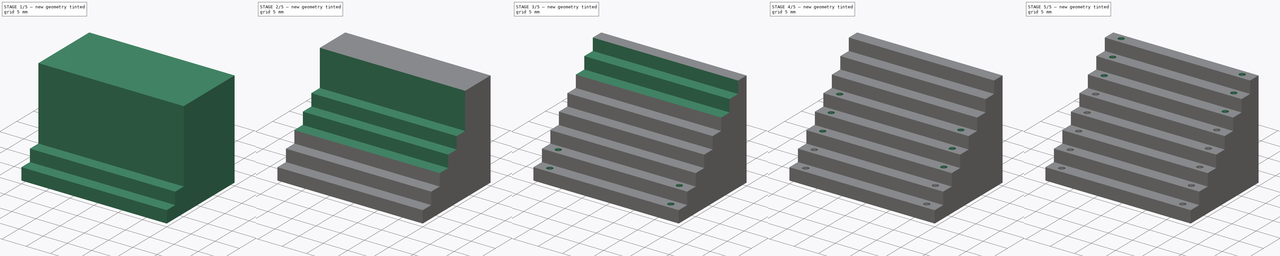
[diagram: build sequence overview — one tinted view per stage of 5, left to right]
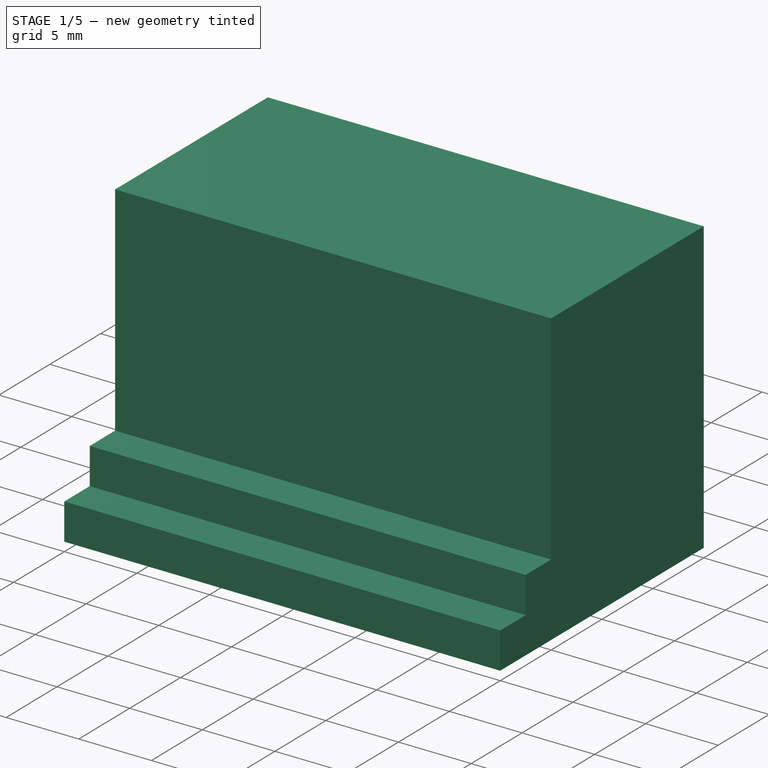
[diagram: stage 1 of 5 — iso view after this stage's code; geometry added in this stage tinted green]
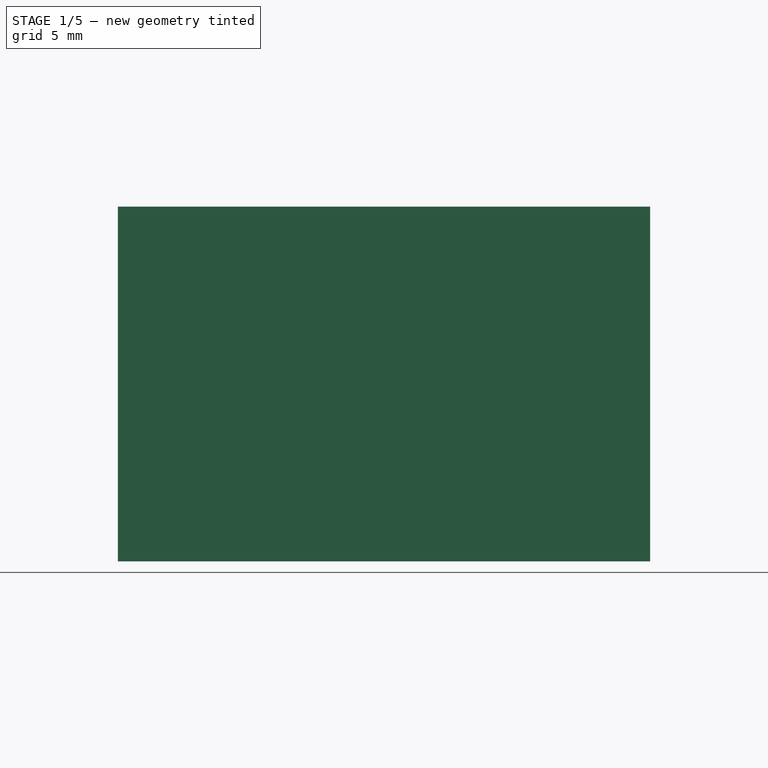
[diagram: stage 1 of 5 — front view after this stage's code; geometry added in this stage tinted green]
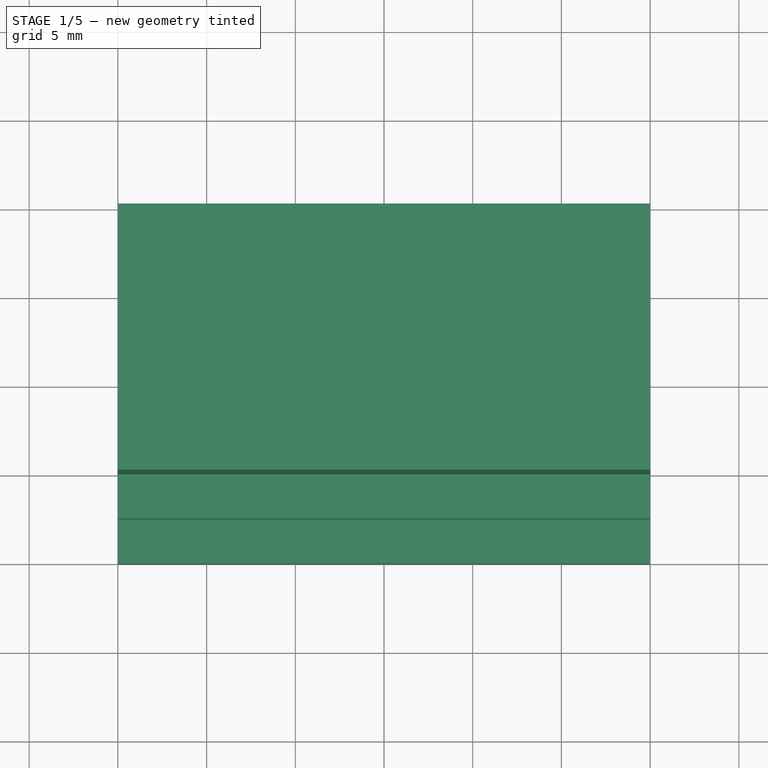
[diagram: stage 1 of 5 — top view after this stage's code; geometry added in this stage tinted green]
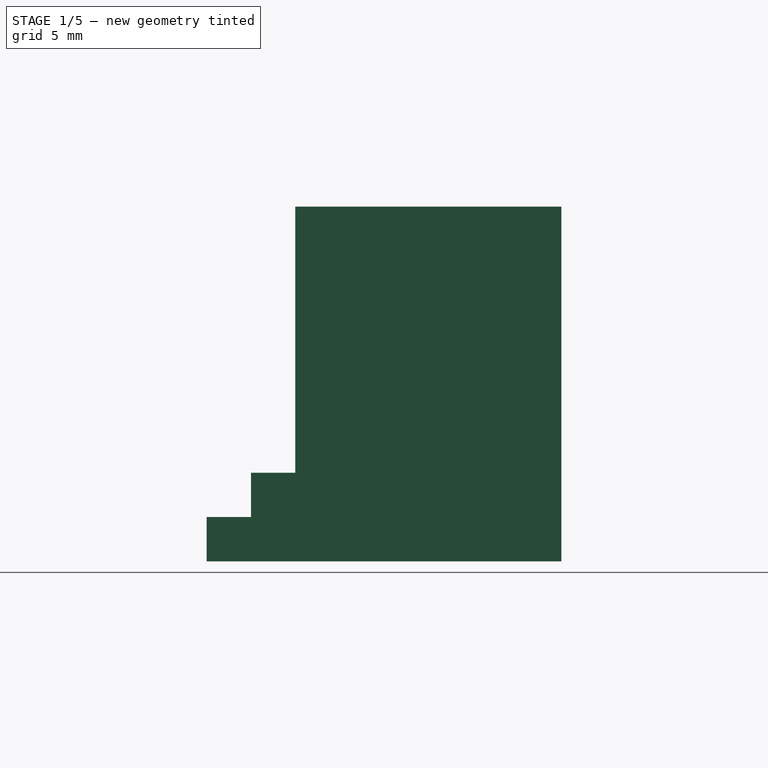
[diagram: stage 1 of 5 — right view after this stage's code; geometry added in this stage tinted green]
FCSTD DOCUMENT  (FreeCAD 0.15R4671 (Git))
Label: treppe
License: All rights reserved
LicenseURL: http://en.wikipedia.org/wiki/All_rights_reserved
objects: Sketcher::SketchObject×16, PartDesign::Pocket×15, PartDesign::Pad×1
note: 48 computed .brp shape members not serialized (recipe doc carries the construction recipe); baked Part::Feature solids carry a one-line shape summary decoded from their .brp

FEATURE [Sketcher::SketchObject] Sketch
  sketch-geometry (4):
    g0: LineSegment StartX=-15 StartY=10 StartZ=0 EndX=15 EndY=10 EndZ=0
    g1: LineSegment StartX=15 StartY=10 StartZ=0 EndX=15 EndY=-10 EndZ=0
    g2: LineSegment StartX=15 StartY=-10 StartZ=0 EndX=-15 EndY=-10 EndZ=0
    g3: LineSegment StartX=-15 StartY=-10 StartZ=0 EndX=-15 EndY=10 EndZ=0
  constraints (12):
    c: Coincident(g0,g1)
    c: Coincident(g1,g2)
    c: Coincident(g2,g3)
    c: Coincident(g3,g0)
    c: Horizontal(g0)
    c: Horizontal(g2)
    c: Vertical(g1)
    c: Vertical(g3)
    c: Symmetric(g2,g0,g-1)
    c: Symmetric(g0,g0,g-2)
    c: DistanceX(g0) = 30
    c: DistanceY(g1) = -20
FEATURE [PartDesign::Pad] Pad
  Length = 20
  Length2 = 100
  Midplane = true
  Sketch = -> Sketch
  Type = 0
FEATURE [Sketcher::SketchObject] Sketch001
  Placement = pos=(0,0,10) rot=(0,0,1;0rad)
  Support = -> Pad [Face6]
  sketch-geometry (4):
    g0: LineSegment StartX=-15 StartY=-7.5 StartZ=0 EndX=15 EndY=-7.5 EndZ=0
    g1: LineSegment StartX=15 StartY=-7.5 StartZ=0 EndX=15 EndY=-10 EndZ=0
    g2: LineSegment StartX=15 StartY=-10 StartZ=0 EndX=-15 EndY=-10 EndZ=0
    g3: LineSegment StartX=-15 StartY=-10 StartZ=0 EndX=-15 EndY=-7.5 EndZ=0
  constraints (12):
    c: Coincident(g0,g1)
    c: Coincident(g1,g2)
    c: Coincident(g2,g3)
    c: Coincident(g3,g0)
    c: Horizontal(g0)
    c: Horizontal(g2)
    c: Vertical(g1)
    c: Vertical(g3)
    c: DistanceX(g0) = 30
    c: DistanceY(g1) = -2.5
    c: Symmetric(g0,g0,g-2)
    c: DistanceY(g-1,g0) = -7.5
FEATURE [PartDesign::Pocket] Pocket
  Length = 17.5
  Sketch = -> Sketch001
  Type = 0
FEATURE [Sketcher::SketchObject] Sketch002
  Placement = pos=(0,0,10) rot=(0,0,1;0rad)
  Support = -> Pocket [Face5]
  sketch-geometry (4):
    g0: LineSegment StartX=-15 StartY=-5 StartZ=0 EndX=15 EndY=-5 EndZ=0
    g1: LineSegment StartX=15 StartY=-5 StartZ=0 EndX=15 EndY=-7.5 EndZ=0
    g2: LineSegment StartX=15 StartY=-7.5 StartZ=0 EndX=-15 EndY=-7.5 EndZ=0
    g3: LineSegment StartX=-15 StartY=-7.5 StartZ=0 EndX=-15 EndY=-5 EndZ=0
  constraints (12):
    c: Coincident(g0,g1)
    c: Coincident(g1,g2)
    c: Coincident(g2,g3)
    c: Coincident(g3,g0)
    c: Horizontal(g0)
    c: Horizontal(g2)
    c: Vertical(g1)
    c: Vertical(g3)
    c: Symmetric(g0,g0,g-2)
    c: DistanceX(g0) = 30
    c: DistanceY(g3) = 2.5
    c: DistanceY(g-1,g0) = -5
FEATURE [PartDesign::Pocket] Pocket001
  Length = 15
  Sketch = -> Sketch002
  Type = 0
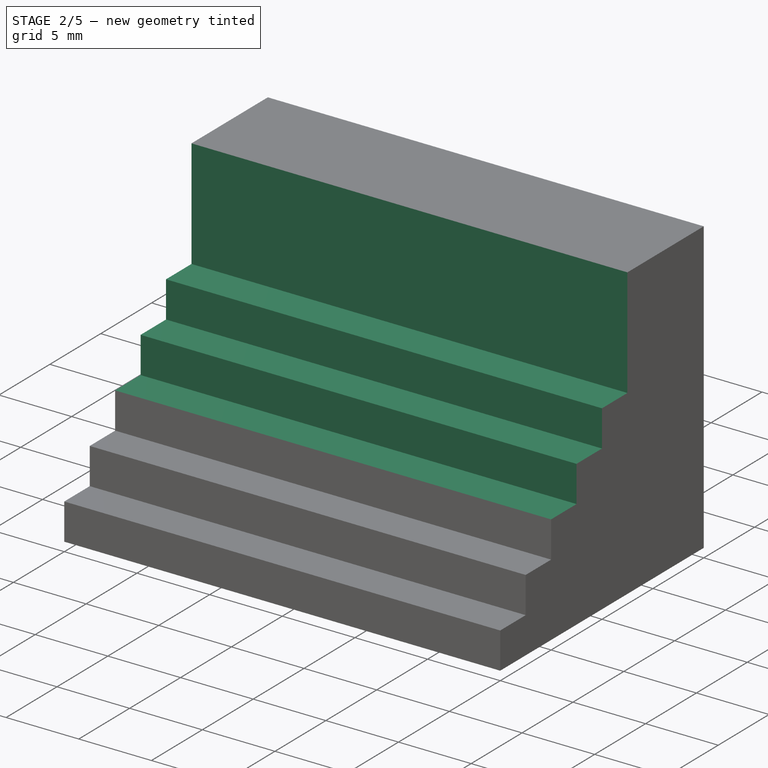
[diagram: stage 2 of 5 — iso view after this stage's code; geometry added in this stage tinted green]
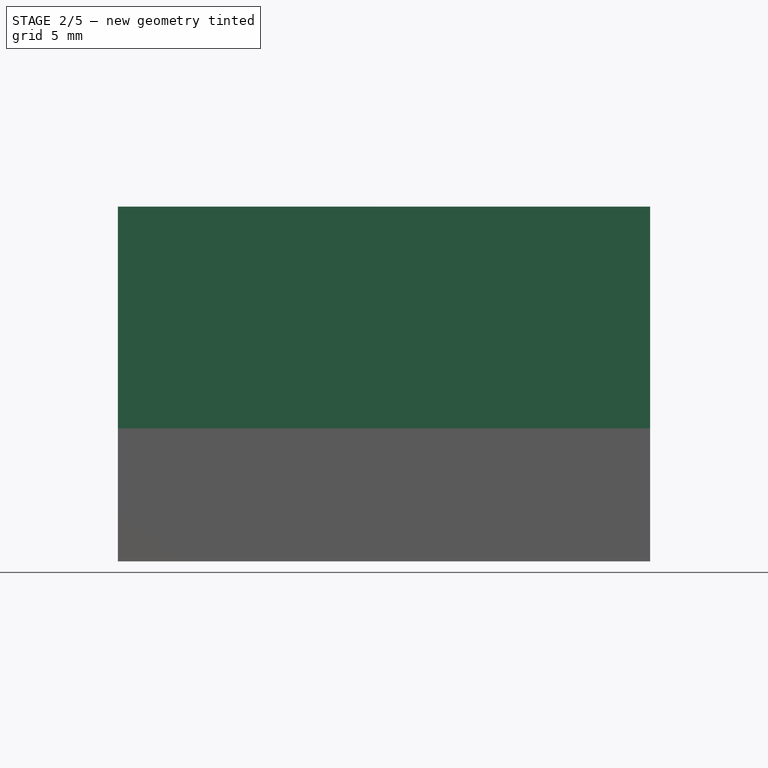
[diagram: stage 2 of 5 — front view after this stage's code; geometry added in this stage tinted green]
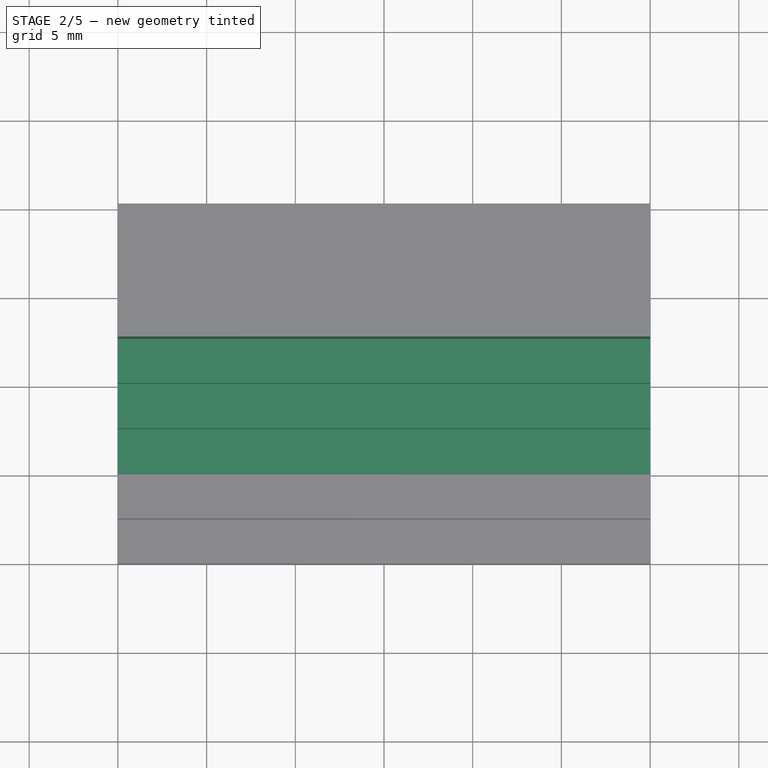
[diagram: stage 2 of 5 — top view after this stage's code; geometry added in this stage tinted green]
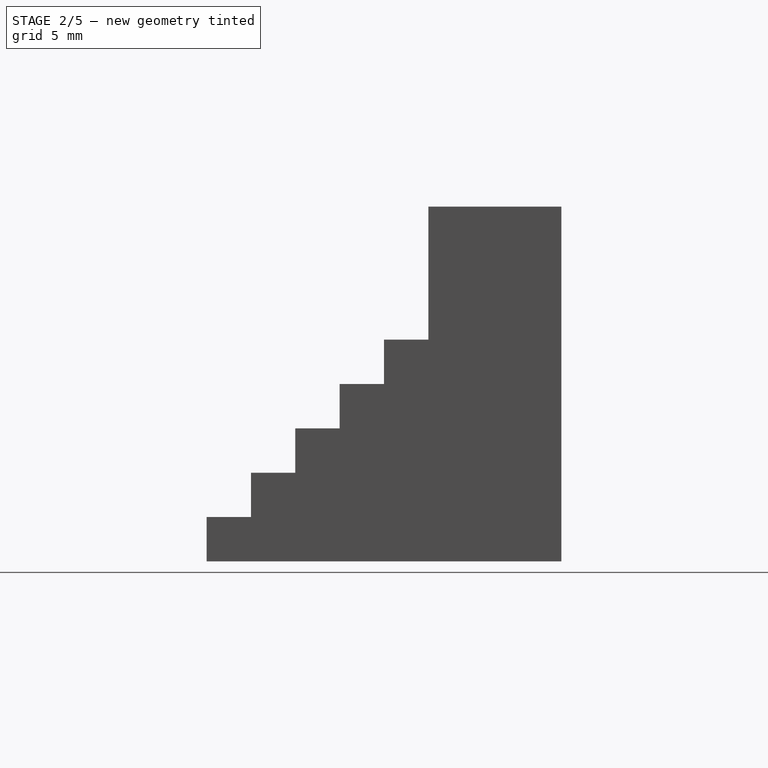
[diagram: stage 2 of 5 — right view after this stage's code; geometry added in this stage tinted green]
FEATURE [Sketcher::SketchObject] Sketch003
  Placement = pos=(0,0,10) rot=(0,0,1;0rad)
  Support = -> Pocket001 [Face5]
  sketch-geometry (4):
    g0: LineSegment StartX=-15 StartY=-2.5 StartZ=0 EndX=15 EndY=-2.5 EndZ=0
    g1: LineSegment StartX=15 StartY=-2.5 StartZ=0 EndX=15 EndY=-5 EndZ=0
    g2: LineSegment StartX=15 StartY=-5 StartZ=0 EndX=-15 EndY=-5 EndZ=0
    g3: LineSegment StartX=-15 StartY=-5 StartZ=0 EndX=-15 EndY=-2.5 EndZ=0
  constraints (12):
    c: Coincident(g0,g1)
    c: Coincident(g1,g2)
    c: Coincident(g2,g3)
    c: Coincident(g3,g0)
    c: Horizontal(g0)
    c: Horizontal(g2)
    c: Vertical(g1)
    c: Vertical(g3)
    c: Symmetric(g0,g0,g-2)
    c: DistanceX(g0) = 30
    c: DistanceY(g1) = -2.5
    c: DistanceY(g-1,g0) = -2.5
FEATURE [PartDesign::Pocket] Pocket002
  Length = 12.5
  Sketch = -> Sketch003
  Type = 0
FEATURE [Sketcher::SketchObject] Sketch004
  Placement = pos=(0,0,10) rot=(0,0,1;0rad)
  Support = -> Pocket002 [Face5]
  sketch-geometry (4):
    g0: LineSegment StartX=-15 StartY=0 StartZ=0 EndX=15 EndY=0 EndZ=0
    g1: LineSegment StartX=15 StartY=0 StartZ=0 EndX=15 EndY=-2.5 EndZ=0
    g2: LineSegment StartX=15 StartY=-2.5 StartZ=0 EndX=-15 EndY=-2.5 EndZ=0
    g3: LineSegment StartX=-15 StartY=-2.5 StartZ=0 EndX=-15 EndY=0 EndZ=0
  constraints (12):
    c: Coincident(g0,g1)
    c: Coincident(g1,g2)
    c: Coincident(g2,g3)
    c: Coincident(g3,g0)
    c: Horizontal(g0)
    c: Horizontal(g2)
    c: Vertical(g1)
    c: Vertical(g3)
    c: Symmetric(g0,g0,g-2)
    c: DistanceX(g0) = 30
    c: DistanceY(g3) = 2.5
    c: DistanceY(g-1,g0) = 0
FEATURE [PartDesign::Pocket] Pocket003
  Length = 10
  Sketch = -> Sketch004
  Type = 0
FEATURE [Sketcher::SketchObject] Sketch005
  Placement = pos=(0,0,10) rot=(0,0,1;0rad)
  Support = -> Pocket003 [Face5]
  sketch-geometry (4):
    g0: LineSegment StartX=-15 StartY=2.5 StartZ=0 EndX=15 EndY=2.5 EndZ=0
    g1: LineSegment StartX=15 StartY=2.5 StartZ=0 EndX=15 EndY=0 EndZ=0
    g2: LineSegment StartX=15 StartY=0 StartZ=0 EndX=-15 EndY=0 EndZ=0
    g3: LineSegment StartX=-15 StartY=0 StartZ=0 EndX=-15 EndY=2.5 EndZ=0
  constraints (12):
    c: Coincident(g0,g1)
    c: Coincident(g1,g2)
    c: Coincident(g2,g3)
    c: Coincident(g3,g0)
    c: Horizontal(g0)
    c: Horizontal(g2)
    c: Vertical(g1)
    c: Vertical(g3)
    c: Symmetric(g0,g0,g-2)
    c: DistanceX(g0) = 30
    c: DistanceY(g1) = -2.5
    c: DistanceY(g-1,g1) = 0
FEATURE [PartDesign::Pocket] Pocket004
  Length = 7.5
  Sketch = -> Sketch005
  Type = 0
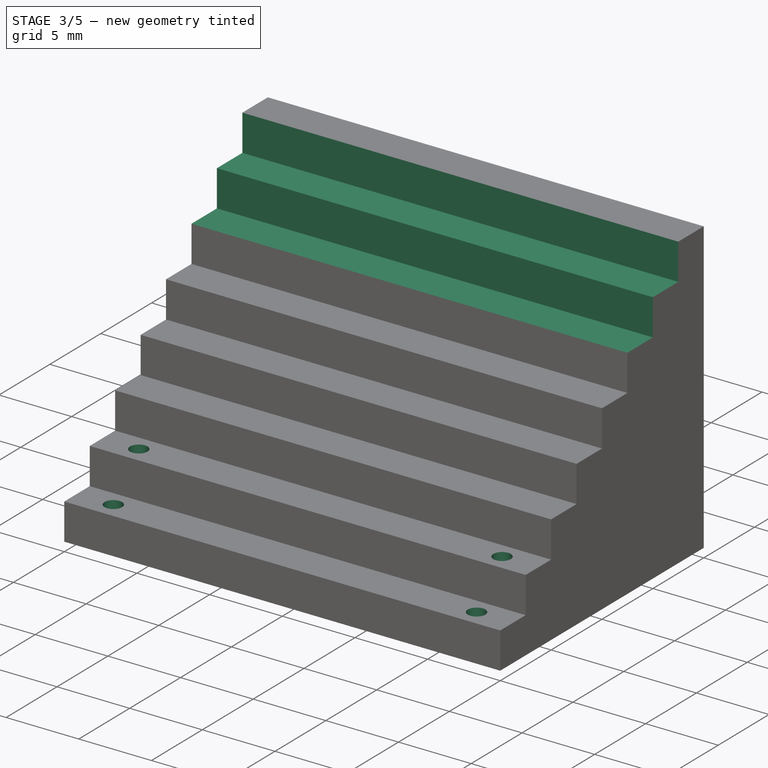
[diagram: stage 3 of 5 — iso view after this stage's code; geometry added in this stage tinted green]
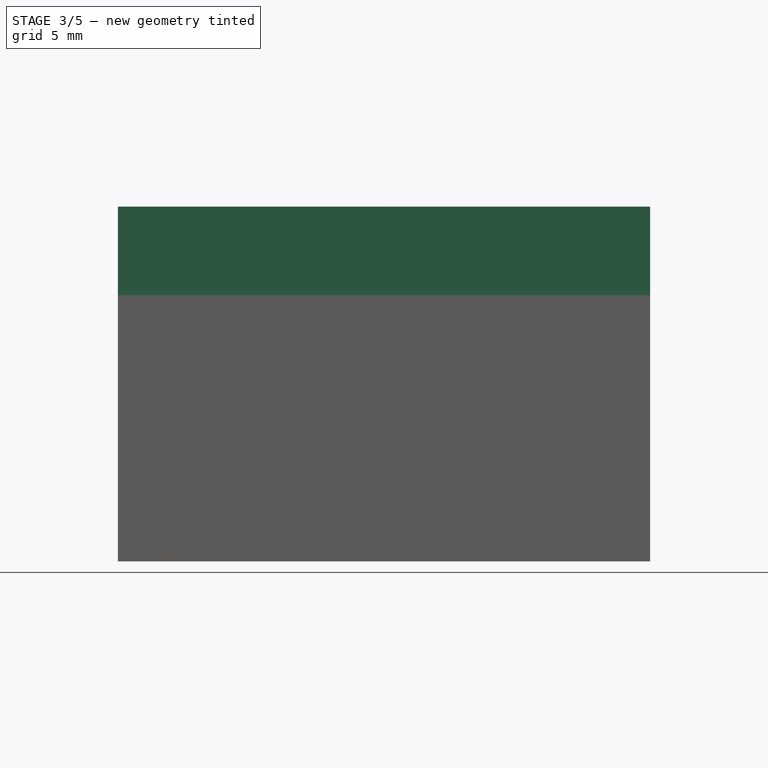
[diagram: stage 3 of 5 — front view after this stage's code; geometry added in this stage tinted green]
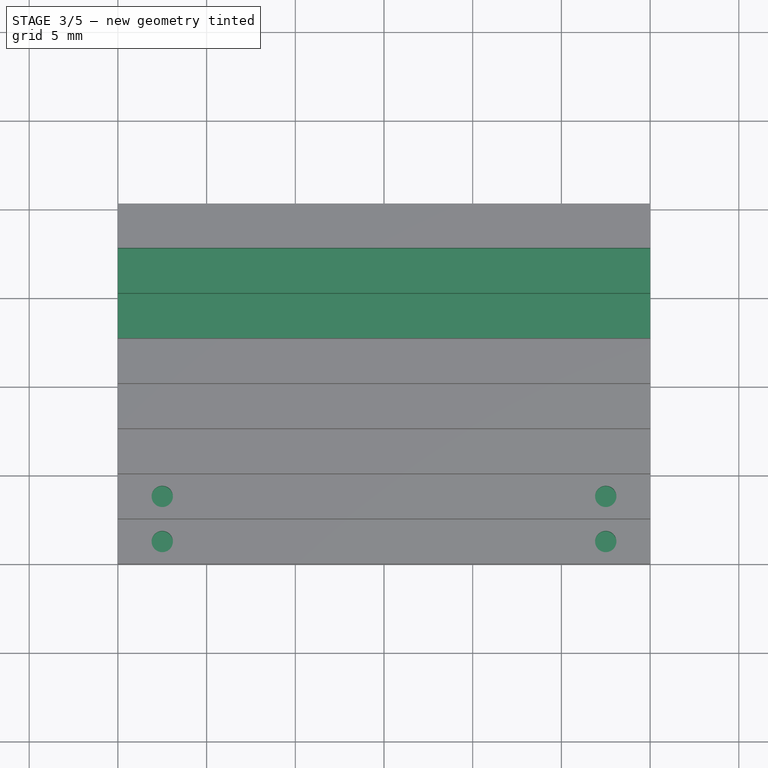
[diagram: stage 3 of 5 — top view after this stage's code; geometry added in this stage tinted green]
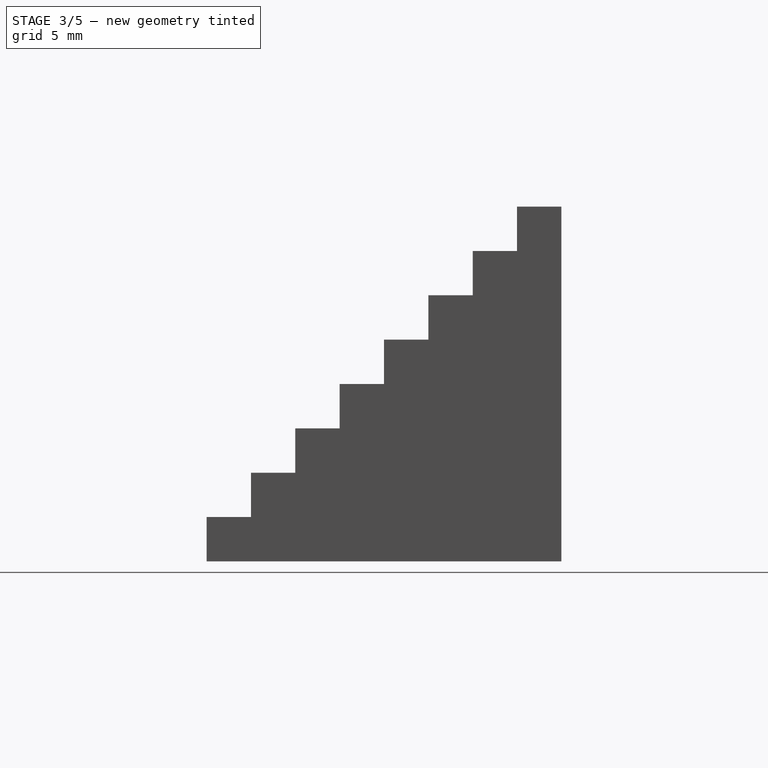
[diagram: stage 3 of 5 — right view after this stage's code; geometry added in this stage tinted green]
FEATURE [Sketcher::SketchObject] Sketch006
  Placement = pos=(0,0,10) rot=(0,0,1;0rad)
  Support = -> Pocket004 [Face5]
  sketch-geometry (4):
    g0: LineSegment StartX=-15 StartY=5 StartZ=0 EndX=15 EndY=5 EndZ=0
    g1: LineSegment StartX=15 StartY=5 StartZ=0 EndX=15 EndY=2.5 EndZ=0
    g2: LineSegment StartX=15 StartY=2.5 StartZ=0 EndX=-15 EndY=2.5 EndZ=0
    g3: LineSegment StartX=-15 StartY=2.5 StartZ=0 EndX=-15 EndY=5 EndZ=0
  constraints (12):
    c: Coincident(g0,g1)
    c: Coincident(g1,g2)
    c: Coincident(g2,g3)
    c: Coincident(g3,g0)
    c: Horizontal(g0)
    c: Horizontal(g2)
    c: Vertical(g1)
    c: Vertical(g3)
    c: Symmetric(g0,g0,g-2)
    c: DistanceX(g0) = 30
    c: DistanceY(g1) = -2.5
    c: DistanceY(g-1,g1) = 2.5
FEATURE [PartDesign::Pocket] Pocket005
  Length = 5
  Sketch = -> Sketch006
  Type = 0
FEATURE [Sketcher::SketchObject] Sketch007
  Placement = pos=(0,0,10) rot=(0,0,1;0rad)
  Support = -> Pocket005 [Face5]
  sketch-geometry (4):
    g0: LineSegment StartX=-15 StartY=7.5 StartZ=0 EndX=15 EndY=7.5 EndZ=0
    g1: LineSegment StartX=15 StartY=7.5 StartZ=0 EndX=15 EndY=5 EndZ=0
    g2: LineSegment StartX=15 StartY=5 StartZ=0 EndX=-15 EndY=5 EndZ=0
    g3: LineSegment StartX=-15 StartY=5 StartZ=0 EndX=-15 EndY=7.5 EndZ=0
  constraints (12):
    c: Coincident(g0,g1)
    c: Coincident(g1,g2)
    c: Coincident(g2,g3)
    c: Coincident(g3,g0)
    c: Horizontal(g0)
    c: Horizontal(g2)
    c: Vertical(g1)
    c: Vertical(g3)
    c: Symmetric(g0,g0,g-2)
    c: DistanceX(g0) = 30
    c: DistanceY(g1) = -2.5
    c: DistanceY(g-1,g1) = 5
FEATURE [PartDesign::Pocket] Pocket006
  Length = 2.5
  Sketch = -> Sketch007
  Type = 0
FEATURE [Sketcher::SketchObject] Sketch008
  Placement = pos=(0,0,-7.5) rot=(0,0,1;0rad)
  Support = -> Pocket006 [Face19]
  sketch-geometry (2):
    g0: Circle CenterX=-12.5 CenterY=-8.75 CenterZ=0 NormalX=0 NormalY=0 NormalZ=1 Radius=0.6
    g1: Circle CenterX=12.5 CenterY=-8.75 CenterZ=0 NormalX=0 NormalY=0 NormalZ=1 Radius=0.6
  constraints (6):
    c: DistanceX(g-1,g0) = -12.5
    c: DistanceY(g-1,g0) = -8.75
    c: Radius(g1) = 0.6
    c: DistanceX(g-1,g1) = 12.5
    c: DistanceY(g-1,g1) = -8.75
    c: Equal(g0,g1)
FEATURE [PartDesign::Pocket] Pocket007
  Length = 1.5
  Sketch = -> Sketch008
  Type = 0
FEATURE [Sketcher::SketchObject] Sketch009
  Placement = pos=(0,0,-5) rot=(0,0,1;0rad)
  Support = -> Pocket007 [Face17]
  sketch-geometry (2):
    g0: Circle CenterX=-12.5 CenterY=-6.25 CenterZ=0 NormalX=0 NormalY=0 NormalZ=1 Radius=0.6
    g1: Circle CenterX=12.5 CenterY=-6.25 CenterZ=0 NormalX=0 NormalY=0 NormalZ=1 Radius=0.6
  constraints (5):
    c: Symmetric(g0,g1,g-2)
    c: Radius(g0) = 0.6
    c: DistanceY(g-1,g0) = -6.25
    c: DistanceX(g0,g1) = 25
    c: Equal(g0,g1)
FEATURE [PartDesign::Pocket] Pocket008
  Length = 1.5
  Sketch = -> Sketch009
  Type = 0
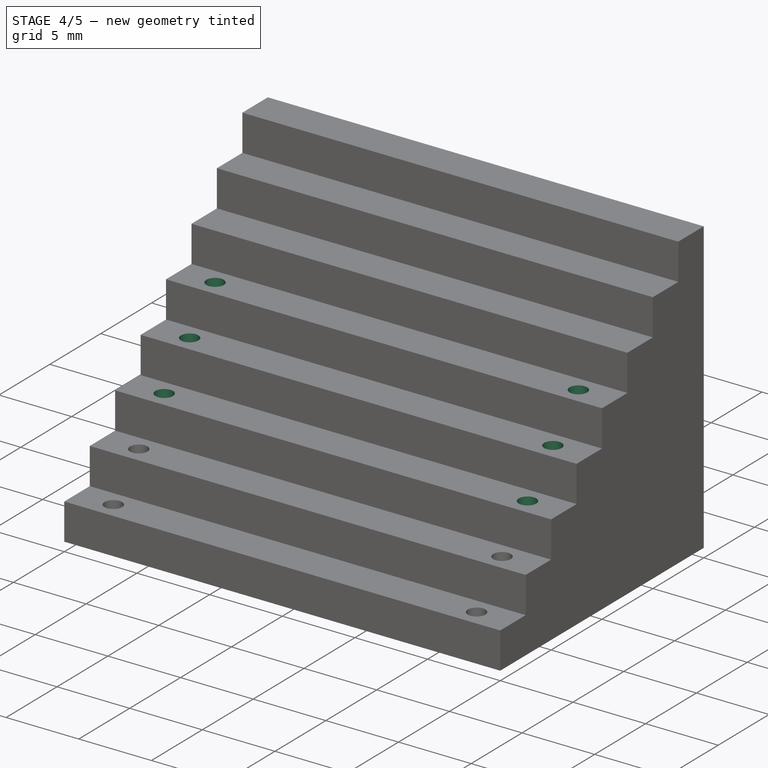
[diagram: stage 4 of 5 — iso view after this stage's code; geometry added in this stage tinted green]
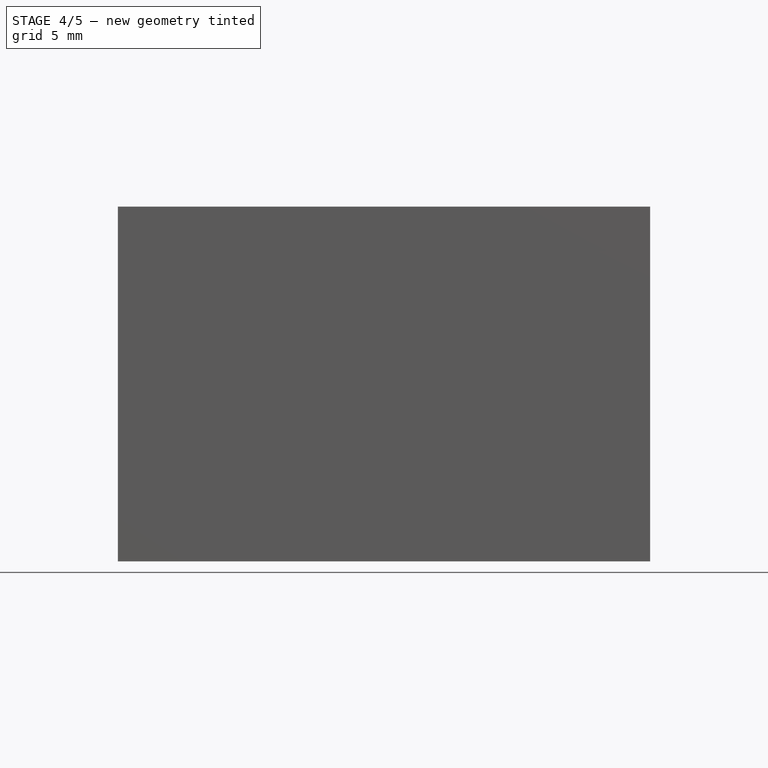
[diagram: stage 4 of 5 — front view after this stage's code; geometry added in this stage tinted green]
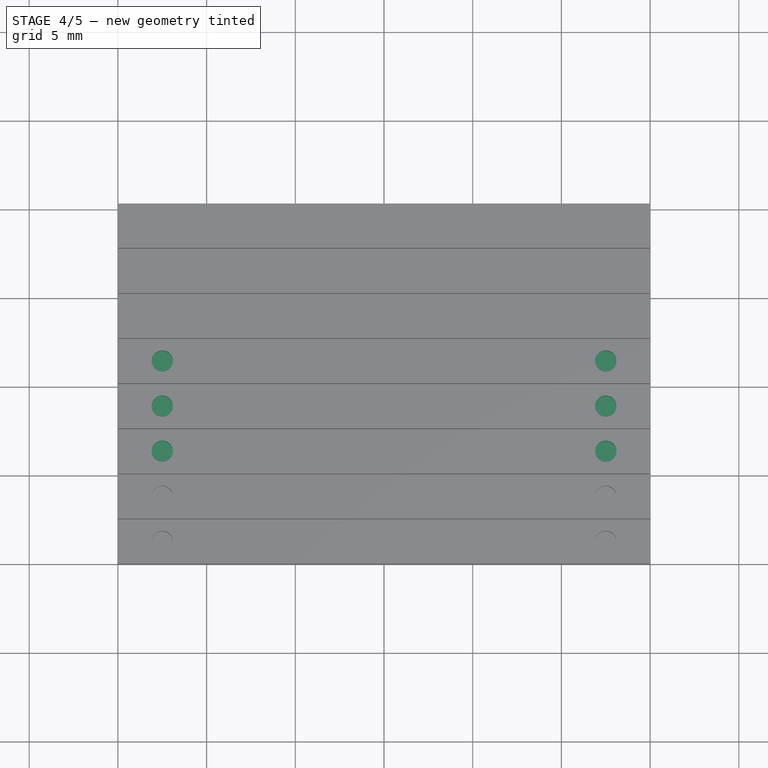
[diagram: stage 4 of 5 — top view after this stage's code; geometry added in this stage tinted green]
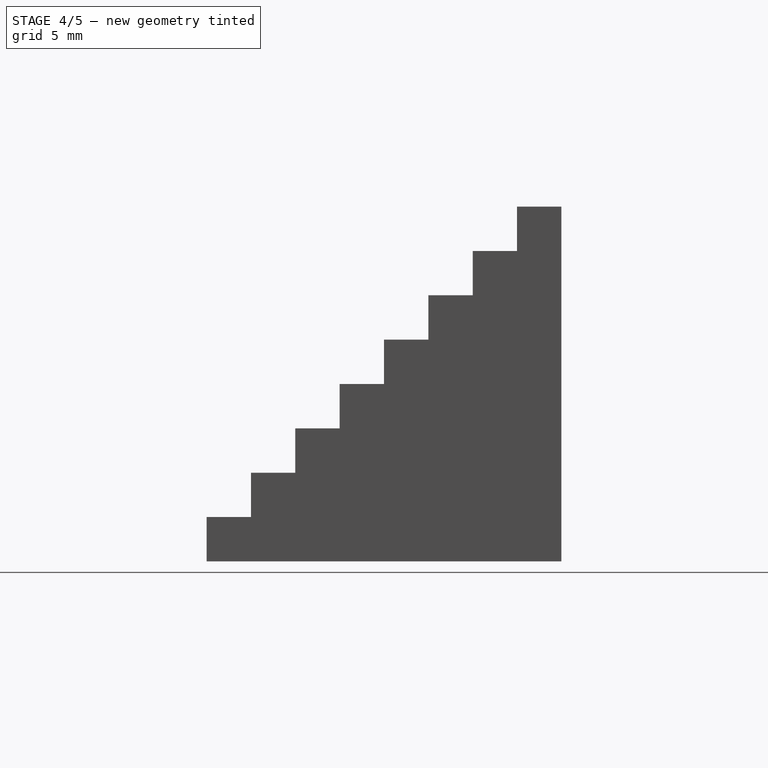
[diagram: stage 4 of 5 — right view after this stage's code; geometry added in this stage tinted green]
FEATURE [Sketcher::SketchObject] Sketch010
  Placement = pos=(0,0,-2.5) rot=(0,0,1;0rad)
  Support = -> Pocket008 [Face15]
  sketch-geometry (2):
    g0: Circle CenterX=-12.5 CenterY=-3.75 CenterZ=0 NormalX=0 NormalY=0 NormalZ=1 Radius=0.6
    g1: Circle CenterX=12.5 CenterY=-3.75 CenterZ=0 NormalX=0 NormalY=0 NormalZ=1 Radius=0.6
  constraints (5):
    c: Symmetric(g0,g1,g-2)
    c: DistanceX(g1,g0) = -25
    c: DistanceY(g-1,g0) = -3.75
    c: Radius(g1) = 0.6
    c: Equal(g0,g1)
FEATURE [PartDesign::Pocket] Pocket009
  Length = 1.5
  Sketch = -> Sketch010
  Type = 0
FEATURE [Sketcher::SketchObject] Sketch011
  Support = -> Pocket009 [Face13]
  sketch-geometry (2):
    g0: Circle CenterX=-12.5 CenterY=-1.25 CenterZ=0 NormalX=0 NormalY=0 NormalZ=1 Radius=0.6
    g1: Circle CenterX=12.5 CenterY=-1.25 CenterZ=0 NormalX=0 NormalY=0 NormalZ=1 Radius=0.6
  constraints (5):
    c: Symmetric(g0,g1,g-2)
    c: DistanceX(g1,g0) = -25
    c: Radius(g1) = 0.6
    c: DistanceY(g-1,g0) = -1.25
    c: Equal(g0,g1)
FEATURE [PartDesign::Pocket] Pocket010
  Length = 1.5
  Sketch = -> Sketch011
  Type = 0
FEATURE [Sketcher::SketchObject] Sketch012
  Placement = pos=(0,0,2.5) rot=(0,0,1;0rad)
  Support = -> Pocket010 [Face11]
  sketch-geometry (2):
    g0: Circle CenterX=-12.5 CenterY=1.25 CenterZ=0 NormalX=0 NormalY=0 NormalZ=1 Radius=0.6
    g1: Circle CenterX=12.5 CenterY=1.25 CenterZ=0 NormalX=0 NormalY=0 NormalZ=1 Radius=0.6
  constraints (5):
    c: Symmetric(g1,g0,g-2)
    c: Radius(g0) = 0.6
    c: DistanceX(g0,g1) = 25
    c: DistanceY(g-1,g0) = 1.25
    c: Equal(g0,g1)
FEATURE [PartDesign::Pocket] Pocket011
  Length = 1.5
  Sketch = -> Sketch012
  Type = 0
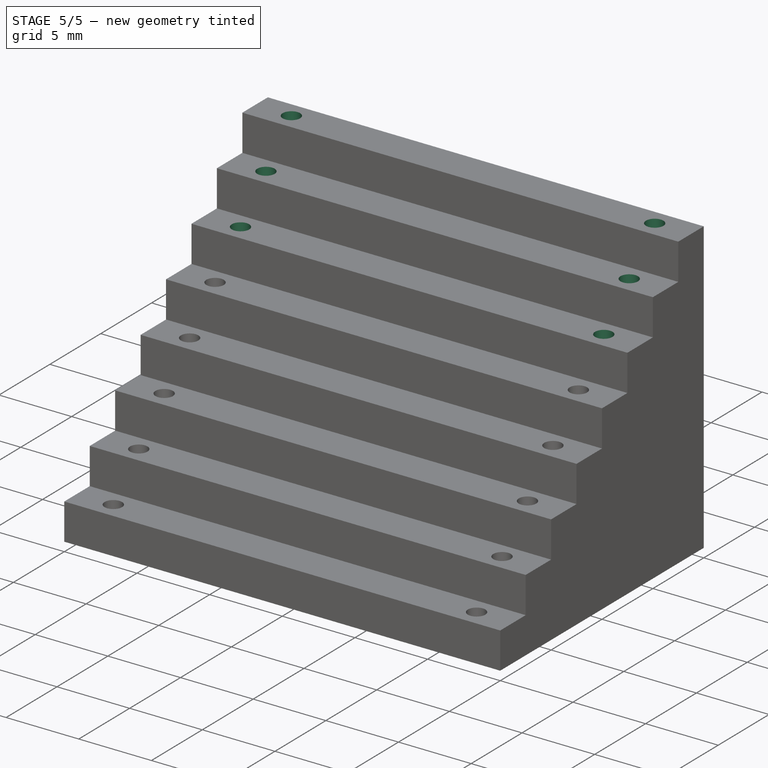
[diagram: stage 5 of 5 — iso view after this stage's code; geometry added in this stage tinted green]
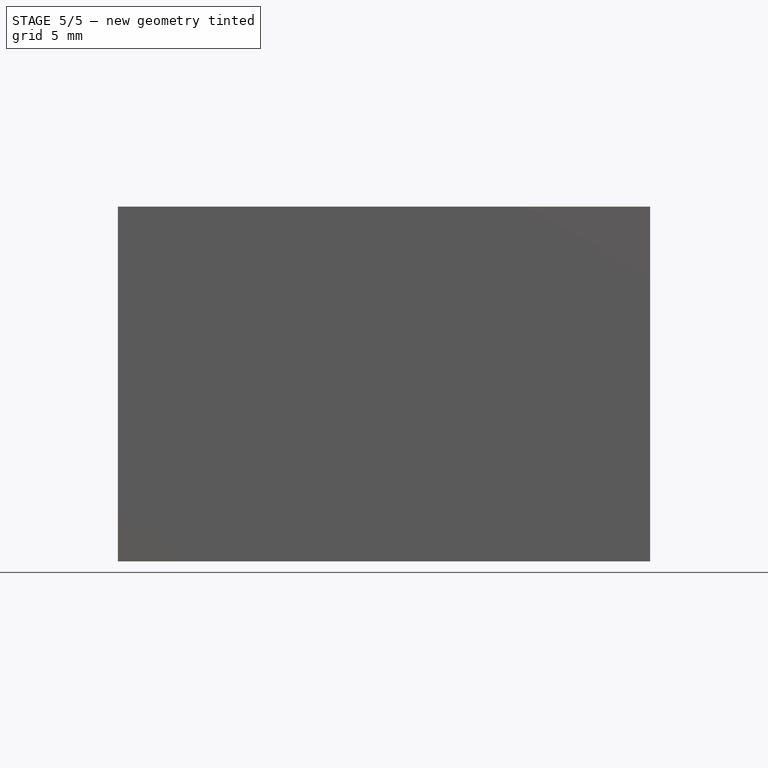
[diagram: stage 5 of 5 — front view after this stage's code; geometry added in this stage tinted green]
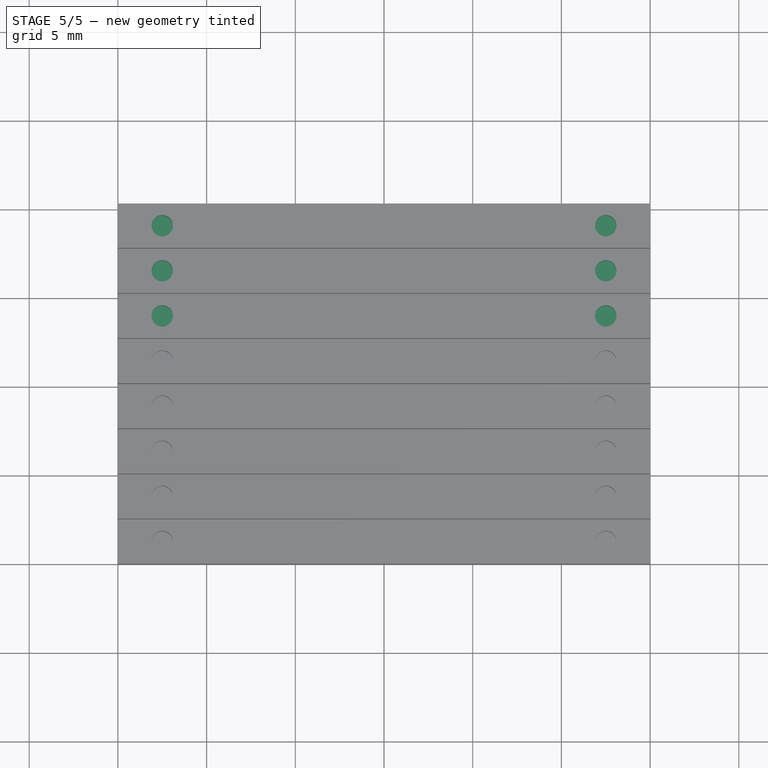
[diagram: stage 5 of 5 — top view after this stage's code; geometry added in this stage tinted green]
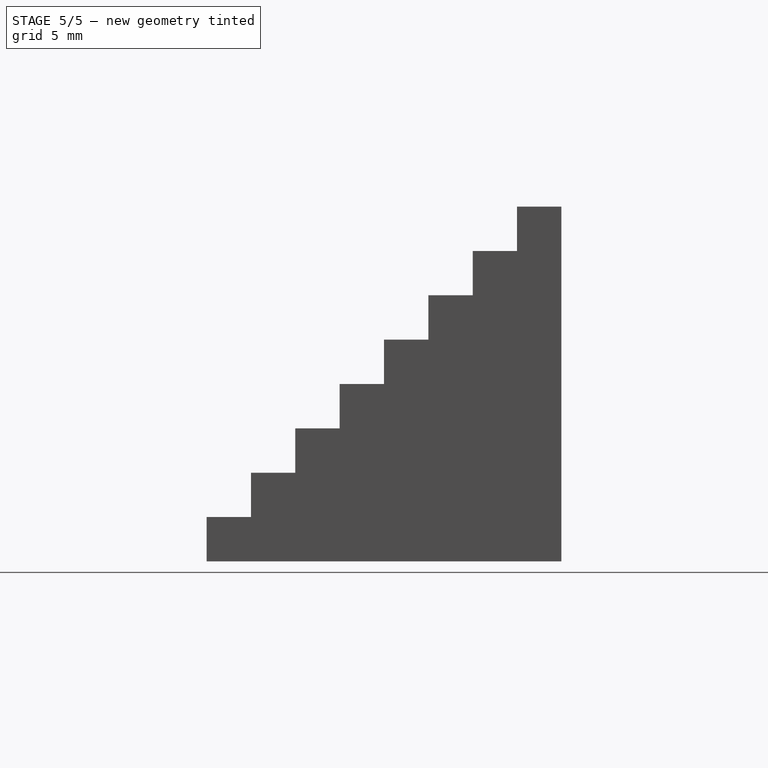
[diagram: stage 5 of 5 — right view after this stage's code; geometry added in this stage tinted green]
FEATURE [Sketcher::SketchObject] Sketch013
  Placement = pos=(0,0,5) rot=(0,0,1;0rad)
  Support = -> Pocket011 [Face9]
  sketch-geometry (2):
    g0: Circle CenterX=-12.5 CenterY=3.75 CenterZ=0 NormalX=0 NormalY=0 NormalZ=1 Radius=0.6
    g1: Circle CenterX=12.5 CenterY=3.75 CenterZ=0 NormalX=0 NormalY=0 NormalZ=1 Radius=0.6
  constraints (5):
    c: Symmetric(g1,g0,g-2)
    c: Radius(g1) = 0.6
    c: DistanceX(g0,g1) = 25
    c: DistanceY(g-1,g0) = 3.75
    c: Equal(g0,g1)
FEATURE [PartDesign::Pocket] Pocket012
  Length = 1.5
  Sketch = -> Sketch013
  Type = 0
FEATURE [Sketcher::SketchObject] Sketch014
  Placement = pos=(0,0,7.5) rot=(0,0,1;0rad)
  Support = -> Pocket012 [Face7]
  sketch-geometry (2):
    g0: Circle CenterX=-12.5 CenterY=6.25 CenterZ=0 NormalX=0 NormalY=0 NormalZ=1 Radius=0.6
    g1: Circle CenterX=12.5 CenterY=6.25 CenterZ=0 NormalX=0 NormalY=0 NormalZ=1 Radius=0.6
  constraints (5):
    c: Symmetric(g1,g0,g-2)
    c: Radius(g1) = 0.6
    c: DistanceX(g0,g1) = 25
    c: DistanceY(g-1,g0) = 6.25
    c: Equal(g0,g1)
FEATURE [PartDesign::Pocket] Pocket013
  Length = 1.5
  Sketch = -> Sketch014
  Type = 0
FEATURE [Sketcher::SketchObject] Sketch015
  Placement = pos=(0,0,10) rot=(0,0,1;0rad)
  Support = -> Pocket013 [Face5]
  sketch-geometry (2):
    g0: Circle CenterX=-12.5 CenterY=8.75 CenterZ=0 NormalX=0 NormalY=0 NormalZ=1 Radius=0.6
    g1: Circle CenterX=12.5 CenterY=8.75 CenterZ=0 NormalX=0 NormalY=0 NormalZ=1 Radius=0.6
  constraints (5):
    c: Symmetric(g1,g0,g-2)
    c: Radius(g1) = 0.6
    c: DistanceX(g0,g1) = 25
    c: DistanceY(g-1,g0) = 8.75
    c: Equal(g0,g1)
FEATURE [PartDesign::Pocket] Pocket014
  Length = 1.5
  Sketch = -> Sketch015
  Type = 0
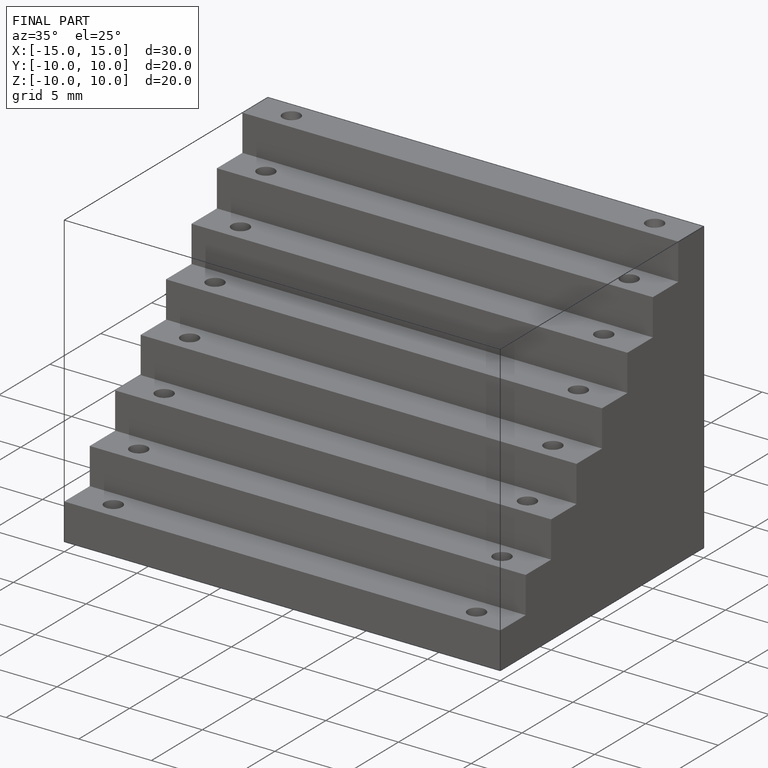
[diagram: finished part — iso view with bounding-box wireframe]
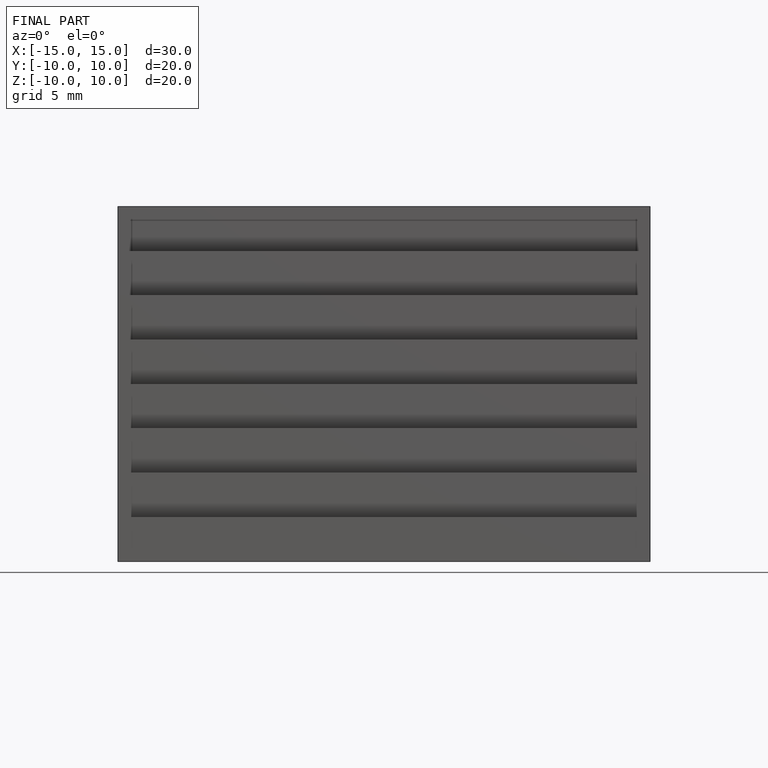
[diagram: finished part — front view with bounding-box wireframe]
